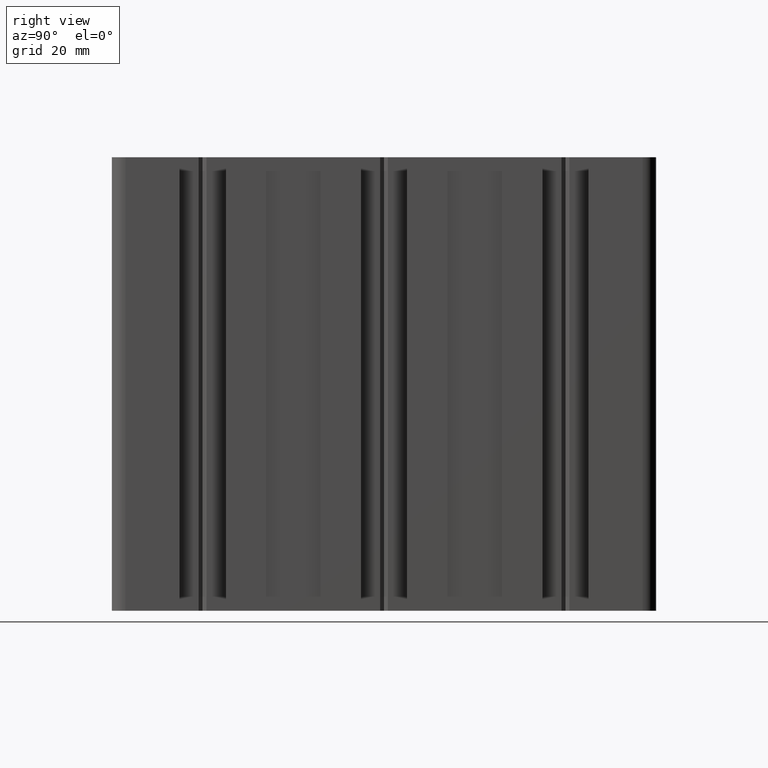
[diagram: clean part render]
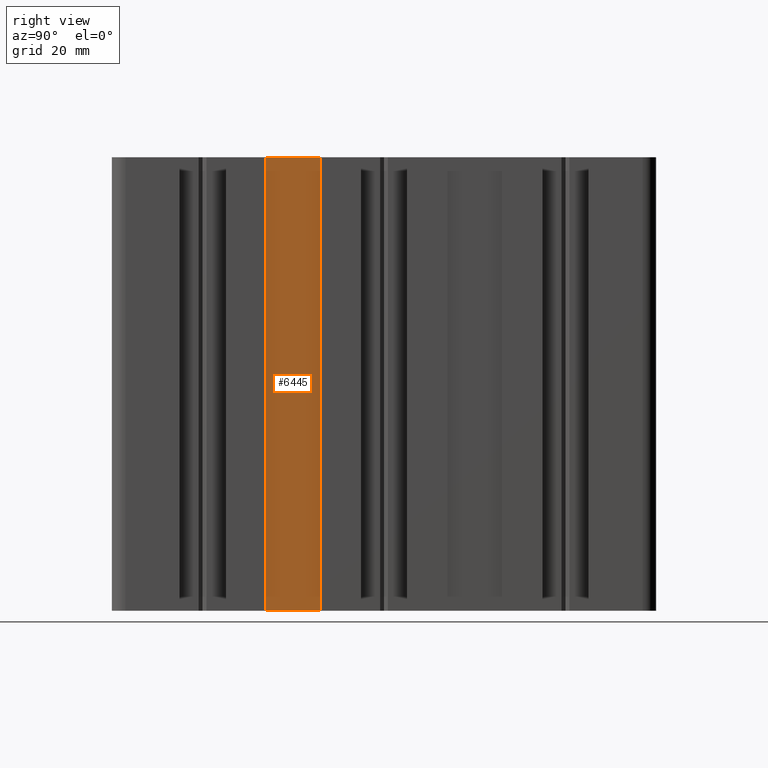
[diagram: same view with one face highlighted and labeled with its STEP entity id]
A machine part, right view. The second image highlights one B-rep face of the part: STEP entity #6445.
In plain terms, the highlighted planar face has unit normal (-1, 0, 0).
Its self-contained STEP definition (entity closure, byte-faithful):
#480 = VECTOR ( 'NONE', #502, 1000.000000000000000 ) ;
#498 = DIRECTION ( 'NONE',  ( -1.000000000000000000, 0.0000000000000000000, 0.0000000000000000000 ) ) ;
#499 = CARTESIAN_POINT ( 'NONE',  ( 18.99999913629474000, -26.00000292580080300, 100.0000000000000000 ) ) ;
#502 = DIRECTION ( 'NONE',  ( -0.0000000000000000000, -0.0000000000000000000, -1.000000000000000000 ) ) ;
#504 = FACE_OUTER_BOUND ( 'NONE', #6398, .T. ) ;
#509 = LINE ( 'NONE', #514, #480 ) ;
#510 = PLANE ( 'NONE',  #518 ) ;
#514 = CARTESIAN_POINT ( 'NONE',  ( 18.99999913629474000, -13.99999707419920000, 100.0000000000000000 ) ) ;
#518 = AXIS2_PLACEMENT_3D ( 'NONE', #499, #498, #554 ) ;
#529 = DIRECTION ( 'NONE',  ( -0.0000000000000000000, -0.0000000000000000000, -1.000000000000000000 ) ) ;
#530 = VECTOR ( 'NONE', #529, 1000.000000000000000 ) ;
#531 = CARTESIAN_POINT ( 'NONE',  ( 18.99999913629474000, -26.00000292580080300, 100.0000000000000000 ) ) ;
#540 = LINE ( 'NONE', #531, #530 ) ;
#554 = DIRECTION ( 'NONE',  ( 0.0000000000000000000, 0.0000000000000000000, 1.000000000000000000 ) ) ;
#3333 = CARTESIAN_POINT ( 'NONE',  ( 18.99999913629474000, -26.00000292580080300, 100.0000000000000000 ) ) ;
#3338 = CARTESIAN_POINT ( 'NONE',  ( 18.99999913629474000, -13.99999707419920000, 100.0000000000000000 ) ) ;
#3437 = DIRECTION ( 'NONE',  ( 0.0000000000000000000, 1.000000000000000000, 0.0000000000000000000 ) ) ;
#3438 = VECTOR ( 'NONE', #3437, 1000.000000000000000 ) ;
#3439 = CARTESIAN_POINT ( 'NONE',  ( 18.99999913629474000, -26.00000292580080300, 100.0000000000000000 ) ) ;
#3442 = LINE ( 'NONE', #3439, #3438 ) ;
#4849 = VERTEX_POINT ( 'NONE', #10111 ) ;
#4864 = VERTEX_POINT ( 'NONE', #10144 ) ;
#4910 = EDGE_CURVE ( 'NONE', #4849, #4864, #10185, .T. ) ;
#6398 = EDGE_LOOP ( 'NONE', ( #6446, #6444, #6448, #6449 ) ) ;
#6443 = EDGE_CURVE ( 'NONE', #12331, #4864, #509, .T. ) ;
#6444 = ORIENTED_EDGE ( 'NONE', *, *, #6443, .F. ) ;
#6445 = ADVANCED_FACE ( 'NONE', ( #504 ), #510, .F. ) ;
#6446 = ORIENTED_EDGE ( 'NONE', *, *, #4910, .T. ) ;
#6448 = ORIENTED_EDGE ( 'NONE', *, *, #12395, .F. ) ;
#6449 = ORIENTED_EDGE ( 'NONE', *, *, #6458, .T. ) ;
#6458 = EDGE_CURVE ( 'NONE', #12328, #4849, #540, .T. ) ;
#10111 = CARTESIAN_POINT ( 'NONE',  ( 18.99999913629474000, -26.00000292580080300, 0.0000000000000000000 ) ) ;
#10144 = CARTESIAN_POINT ( 'NONE',  ( 18.99999913629474000, -13.99999707419920000, 0.0000000000000000000 ) ) ;
#10184 = CARTESIAN_POINT ( 'NONE',  ( 18.99999913629474000, -26.00000292580080300, 0.0000000000000000000 ) ) ;
#10185 = LINE ( 'NONE', #10184, #10231 ) ;
#10230 = DIRECTION ( 'NONE',  ( 0.0000000000000000000, 1.000000000000000000, 0.0000000000000000000 ) ) ;
#10231 = VECTOR ( 'NONE', #10230, 1000.000000000000000 ) ;
#12328 = VERTEX_POINT ( 'NONE', #3333 ) ;
#12331 = VERTEX_POINT ( 'NONE', #3338 ) ;
#12395 = EDGE_CURVE ( 'NONE', #12328, #12331, #3442, .T. ) ;